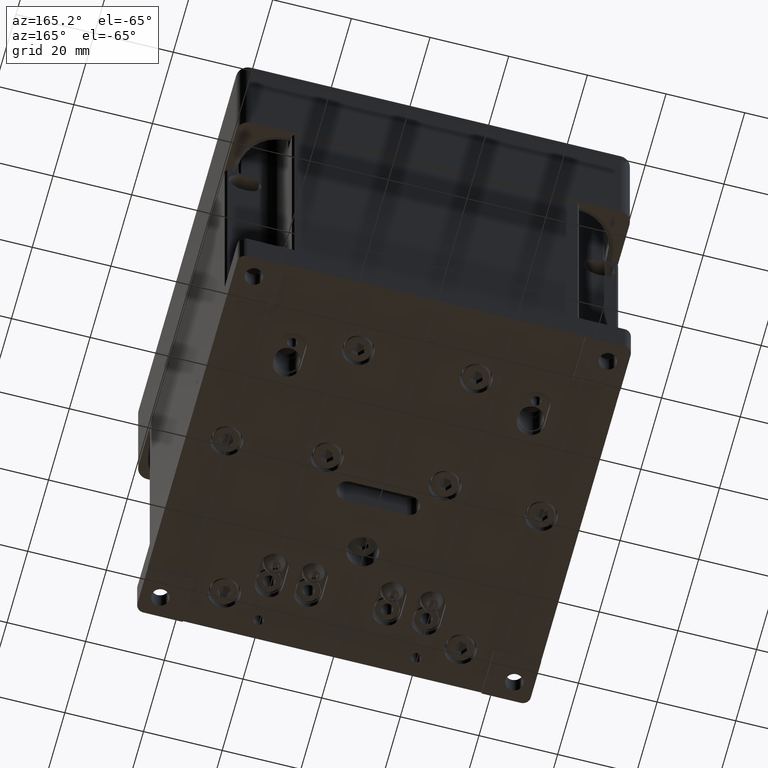
[diagram: clean part render]
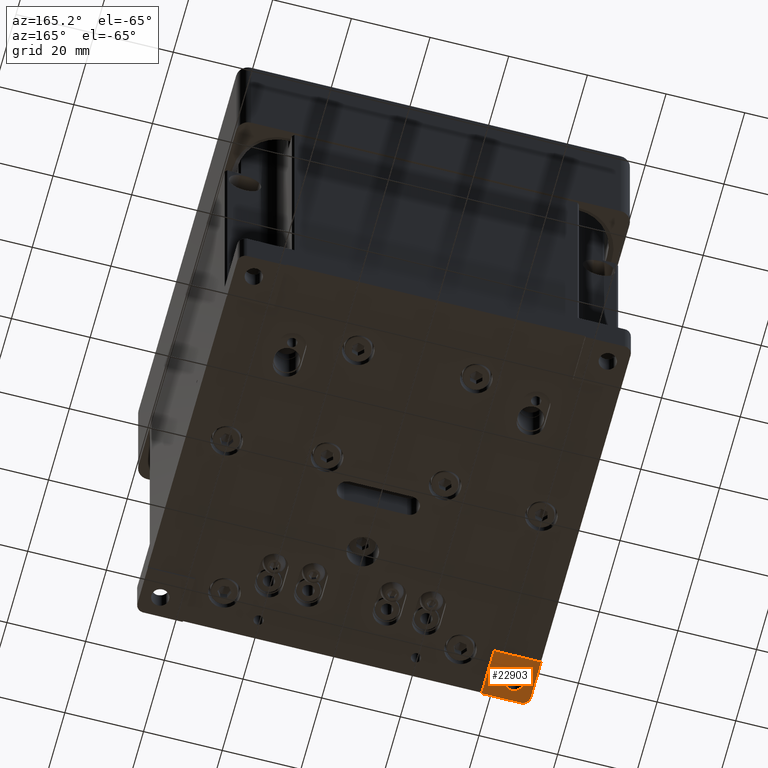
[diagram: same view with one face highlighted and labeled with its STEP entity id]
A machine part, auxiliary view. The second image highlights one B-rep face of the part: STEP entity #22903.
In plain terms, the highlighted planar face has unit normal (0, 0, -1).
Its self-contained STEP definition (entity closure, byte-faithful):
#262 = ORIENTED_EDGE ( 'NONE', *, *, #3367, .T. ) ;
#311 = CARTESIAN_POINT ( 'NONE',  ( -44.99999999999998579, -44.99999999999999289, -9.999999999999994671 ) ) ;
#385 = DIRECTION ( 'NONE',  ( 1.000000000000000000, 0.000000000000000000, 0.000000000000000000 ) ) ;
#2053 = VERTEX_POINT ( 'NONE', #38873 ) ;
#3009 = FACE_OUTER_BOUND ( 'NONE', #20868, .T. ) ;
#3367 = EDGE_CURVE ( 'NONE', #26762, #2053, #41818, .T. ) ;
#3956 = CARTESIAN_POINT ( 'NONE',  ( -47.99999999999998579, -47.99999999999998579, -10.00000000000000000 ) ) ;
#5736 = LINE ( 'NONE', #23845, #39823 ) ;
#7480 = ORIENTED_EDGE ( 'NONE', *, *, #45650, .F. ) ;
#7596 = CARTESIAN_POINT ( 'NONE',  ( -37.99999999999996447, -38.00000000000000711, -10.00000000000000000 ) ) ;
#7646 = DIRECTION ( 'NONE',  ( -0.000000000000000000, -0.000000000000000000, 1.000000000000000000 ) ) ;
#8525 = VERTEX_POINT ( 'NONE', #11149 ) ;
#11149 = CARTESIAN_POINT ( 'NONE',  ( -37.99999999999996447, -49.99999999999998579, -10.00000000000000000 ) ) ;
#11234 = ORIENTED_EDGE ( 'NONE', *, *, #33195, .T. ) ;
#11620 = DIRECTION ( 'NONE',  ( 1.000000000000000000, 0.000000000000000000, 0.000000000000000000 ) ) ;
#14737 = AXIS2_PLACEMENT_3D ( 'NONE', #35588, #21440, #17682 ) ;
#14917 = VERTEX_POINT ( 'NONE', #7596 ) ;
#15123 = LINE ( 'NONE', #32763, #39129 ) ;
#17682 = DIRECTION ( 'NONE',  ( 1.000000000000000000, 0.000000000000000000, 0.000000000000000000 ) ) ;
#18137 = CARTESIAN_POINT ( 'NONE',  ( 0.000000000000000000, -38.00000000000000711, -10.00000000000000000 ) ) ;
#18189 = DIRECTION ( 'NONE',  ( 1.000000000000000000, 0.000000000000000000, 0.000000000000000000 ) ) ;
#18407 = EDGE_LOOP ( 'NONE', ( #262, #18983 ) ) ;
#18983 = ORIENTED_EDGE ( 'NONE', *, *, #30201, .T. ) ;
#19809 = AXIS2_PLACEMENT_3D ( 'NONE', #311, #7646, #11620 ) ;
#20092 = DIRECTION ( 'NONE',  ( -0.000000000000000000, -1.000000000000000000, -0.000000000000000000 ) ) ;
#20868 = EDGE_LOOP ( 'NONE', ( #7480, #29093, #25007, #11234, #29635 ) ) ;
#21053 = VECTOR ( 'NONE', #21895, 1000.000000000000000 ) ;
#21122 = DIRECTION ( 'NONE',  ( -1.000000000000000000, 0.000000000000000000, -0.000000000000000000 ) ) ;
#21440 = DIRECTION ( 'NONE',  ( -0.000000000000000000, -0.000000000000000000, 1.000000000000000000 ) ) ;
#21742 = CARTESIAN_POINT ( 'NONE',  ( -49.99999999999998579, -47.99999999999997868, -10.00000000000000000 ) ) ;
#21895 = DIRECTION ( 'NONE',  ( 1.000000000000000000, -0.000000000000000000, 0.000000000000000000 ) ) ;
#21955 = VERTEX_POINT ( 'NONE', #21742 ) ;
#22081 = CARTESIAN_POINT ( 'NONE',  ( -42.74999999999998579, -44.99999999999999289, -9.999999999999994671 ) ) ;
#22903 = ADVANCED_FACE ( 'NONE', ( #28393, #3009 ), #28641, .T. ) ;
#23845 = CARTESIAN_POINT ( 'NONE',  ( -37.99999999999996447, 0.000000000000000000, -10.00000000000000000 ) ) ;
#24154 = CARTESIAN_POINT ( 'NONE',  ( -47.99999999999998579, -49.99999999999998579, -10.00000000000000000 ) ) ;
#25007 = ORIENTED_EDGE ( 'NONE', *, *, #32318, .T. ) ;
#25226 = EDGE_CURVE ( 'NONE', #42902, #8525, #15123, .T. ) ;
#25658 = LINE ( 'NONE', #29420, #30842 ) ;
#26122 = CIRCLE ( 'NONE', #33630, 2.000000000000001776 ) ;
#26762 = VERTEX_POINT ( 'NONE', #22081 ) ;
#28393 = FACE_BOUND ( 'NONE', #18407, .T. ) ;
#28404 = DIRECTION ( 'NONE',  ( 0.000000000000000000, 0.000000000000000000, 1.000000000000000000 ) ) ;
#28641 = PLANE ( 'NONE',  #43690 ) ;
#29093 = ORIENTED_EDGE ( 'NONE', *, *, #32484, .F. ) ;
#29420 = CARTESIAN_POINT ( 'NONE',  ( -50.00000000000000000, 50.00000000000000000, -10.00000000000000000 ) ) ;
#29635 = ORIENTED_EDGE ( 'NONE', *, *, #25226, .F. ) ;
#30201 = EDGE_CURVE ( 'NONE', #2053, #26762, #34846, .T. ) ;
#30842 = VECTOR ( 'NONE', #43813, 1000.000000000000000 ) ;
#32318 = EDGE_CURVE ( 'NONE', #40293, #14917, #39095, .T. ) ;
#32484 = EDGE_CURVE ( 'NONE', #40293, #21955, #25658, .T. ) ;
#32763 = CARTESIAN_POINT ( 'NONE',  ( -49.99999999999998579, -49.99999999999998579, -10.00000000000000000 ) ) ;
#33195 = EDGE_CURVE ( 'NONE', #14917, #8525, #5736, .T. ) ;
#33630 = AXIS2_PLACEMENT_3D ( 'NONE', #3956, #28404, #385 ) ;
#34846 = CIRCLE ( 'NONE', #19809, 2.250000000000001776 ) ;
#35588 = CARTESIAN_POINT ( 'NONE',  ( -44.99999999999998579, -44.99999999999999289, -9.999999999999994671 ) ) ;
#38003 = CARTESIAN_POINT ( 'NONE',  ( -49.99999999999998579, -38.00000000000000711, -10.00000000000000000 ) ) ;
#38873 = CARTESIAN_POINT ( 'NONE',  ( -47.24999999999998579, -44.99999999999999289, -9.999999999999994671 ) ) ;
#39095 = LINE ( 'NONE', #18137, #21053 ) ;
#39129 = VECTOR ( 'NONE', #18189, 1000.000000000000000 ) ;
#39823 = VECTOR ( 'NONE', #20092, 1000.000000000000000 ) ;
#40293 = VERTEX_POINT ( 'NONE', #38003 ) ;
#41818 = CIRCLE ( 'NONE', #14737, 2.250000000000001776 ) ;
#42780 = DIRECTION ( 'NONE',  ( 0.000000000000000000, 0.000000000000000000, -1.000000000000000000 ) ) ;
#42902 = VERTEX_POINT ( 'NONE', #24154 ) ;
#43690 = AXIS2_PLACEMENT_3D ( 'NONE', #46109, #42780, #21122 ) ;
#43813 = DIRECTION ( 'NONE',  ( 1.387778780781445922E-16, -1.000000000000000000, 0.000000000000000000 ) ) ;
#45650 = EDGE_CURVE ( 'NONE', #21955, #42902, #26122, .T. ) ;
#46109 = CARTESIAN_POINT ( 'NONE',  ( 0.000000000000000000, 0.000000000000000000, -10.00000000000000000 ) ) ;